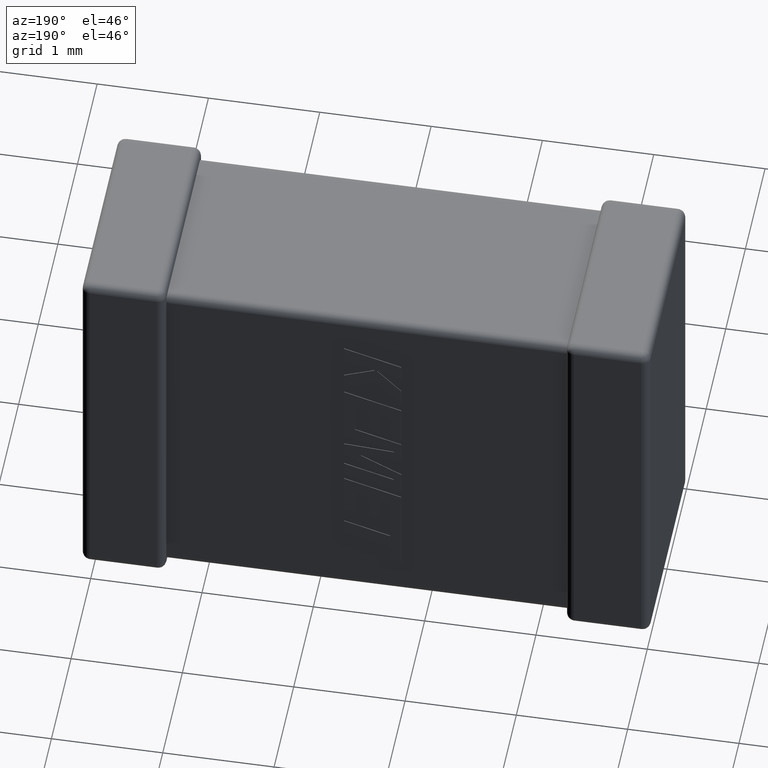
[diagram: clean part render]
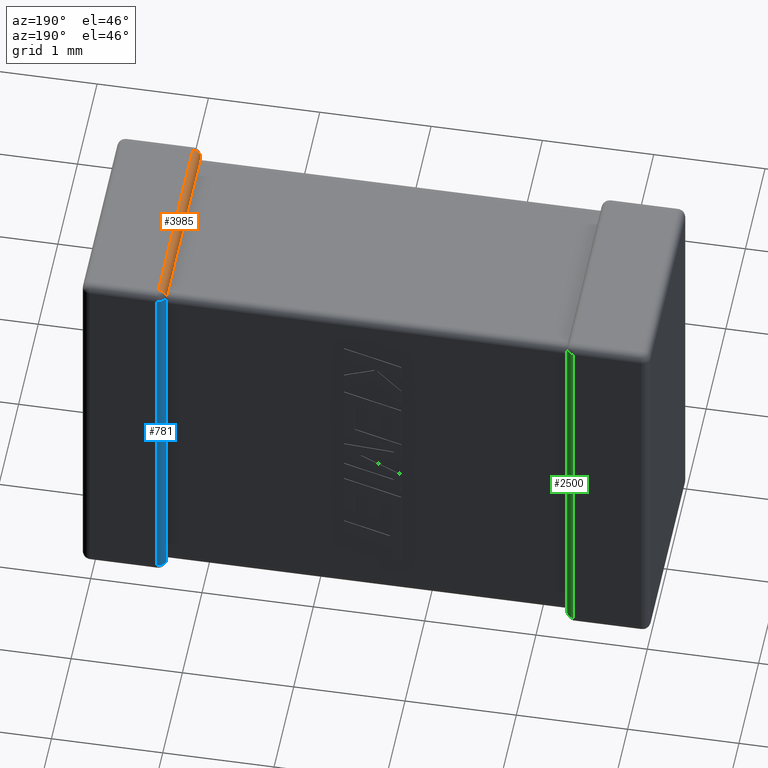
[diagram: same view with three faces highlighted in distinct colors, each labeled with its STEP entity id]
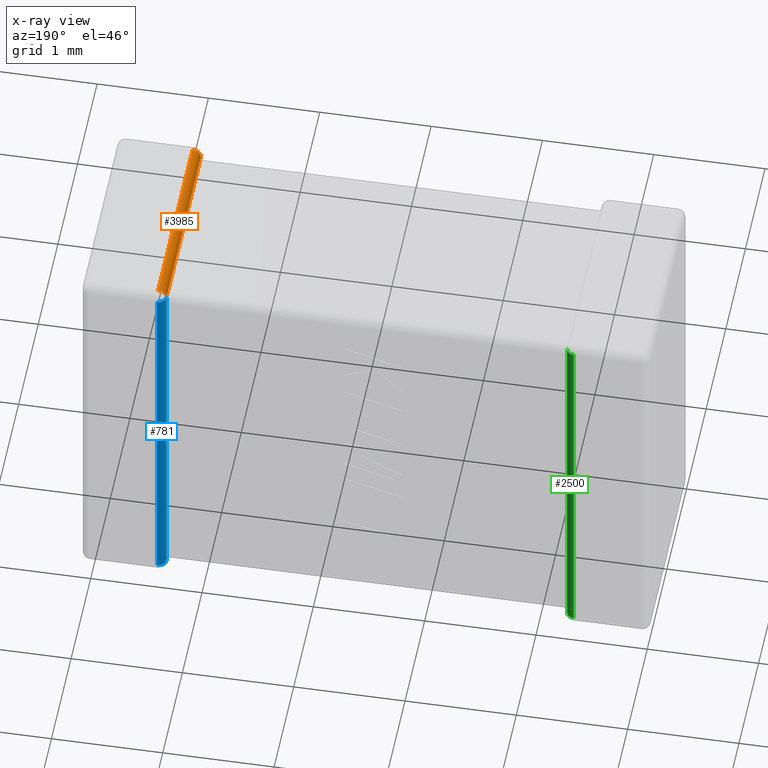
[diagram: x-ray of the same camera — body ghosted, the three highlighted faces saturated]
A machine part, auxiliary view with three faces highlighted in distinct colors.
The next image is the same camera in x-ray (body ghosted, the three faces saturated) — at least one of them is partly hidden behind the body in this view.
Their STEP definitions:

[orange] entity #3985 — the highlighted cylindrical surface (edge-blend (fillet) strip) has radius 0.0728 mm, axis along (0, 1, 0).
#27 = DIRECTION ( 'NONE',  ( 1.191430958775282736E-14, 1.000000000000000000, 0.000000000000000000 ) ) ;
#199 = CARTESIAN_POINT ( 'NONE',  ( 4.350000000000001421, 1.827199999999999935, -0.07280000000000003135 ) ) ;
#219 = CARTESIAN_POINT ( 'NONE',  ( 4.350000000000001421, 0.1455999999999993966, -0.07280000000000003135 ) ) ;
#253 = CARTESIAN_POINT ( 'NONE',  ( 4.350000000000001421, 1.899999999999999911, -0.07280000000000003135 ) ) ;
#310 = AXIS2_PLACEMENT_3D ( 'NONE', #1409, #4375, #2215 ) ;
#371 = CIRCLE ( 'NONE', #1364, 0.07279999999999960114 ) ;
#638 = EDGE_CURVE ( 'NONE', #3297, #3425, #1279, .T. ) ;
#839 = VECTOR ( 'NONE', #3559, 1000.000000000000000 ) ;
#944 = EDGE_CURVE ( 'NONE', #3900, #4324, #2394, .T. ) ;
#1067 = VECTOR ( 'NONE', #2371, 1000.000000000000000 ) ;
#1082 = ORIENTED_EDGE ( 'NONE', *, *, #2369, .F. ) ;
#1156 = CARTESIAN_POINT ( 'NONE',  ( 4.350000000000001421, 0.000000000000000000, -0.07280000000000003135 ) ) ;
#1236 = DIRECTION ( 'NONE',  ( 1.191430958775282736E-14, 1.000000000000000000, 0.000000000000000000 ) ) ;
#1279 = LINE ( 'NONE', #253, #2258 ) ;
#1364 = AXIS2_PLACEMENT_3D ( 'NONE', #2542, #2886, #2441 ) ;
#1409 = CARTESIAN_POINT ( 'NONE',  ( 4.422800000000000509, 1.827199999999999935, -0.07280000000000003135 ) ) ;
#1412 = ORIENTED_EDGE ( 'NONE', *, *, #3574, .T. ) ;
#1452 = FACE_OUTER_BOUND ( 'NONE', #2031, .T. ) ;
#1683 = LINE ( 'NONE', #1731, #839 ) ;
#1731 = CARTESIAN_POINT ( 'NONE',  ( 4.350000000000001421, 1.899999999999999911, -0.07280000000000003135 ) ) ;
#1778 = CARTESIAN_POINT ( 'NONE',  ( 4.422800000000000509, 1.827199999999999935, 0.000000000000000000 ) ) ;
#1779 = CIRCLE ( 'NONE', #310, 0.07279999999999960114 ) ;
#1851 = DIRECTION ( 'NONE',  ( -1.000000000000000000, 1.191430958775286049E-14, 0.000000000000000000 ) ) ;
#2031 = EDGE_LOOP ( 'NONE', ( #2675, #1082, #2607, #1412, #3661, #2592 ) ) ;
#2215 = DIRECTION ( 'NONE',  ( -1.000000000000000000, 1.191430958775286049E-14, 0.000000000000000000 ) ) ;
#2258 = VECTOR ( 'NONE', #1236, 1000.000000000000000 ) ;
#2369 = EDGE_CURVE ( 'NONE', #4324, #3451, #371, .T. ) ;
#2371 = DIRECTION ( 'NONE',  ( -1.191430958775282736E-14, -1.000000000000000000, -0.000000000000000000 ) ) ;
#2394 = LINE ( 'NONE', #3159, #1067 ) ;
#2441 = DIRECTION ( 'NONE',  ( 1.000000000000000000, -1.191430958775286049E-14, 0.000000000000000000 ) ) ;
#2542 = CARTESIAN_POINT ( 'NONE',  ( 4.422799999999979192, 0.07280000000000000360, -0.07280000000000000360 ) ) ;
#2577 = CARTESIAN_POINT ( 'NONE',  ( 4.422800000000001397, 1.899999999999999023, -0.07280000000000003135 ) ) ;
#2592 = ORIENTED_EDGE ( 'NONE', *, *, #4238, .F. ) ;
#2607 = ORIENTED_EDGE ( 'NONE', *, *, #944, .F. ) ;
#2642 = DIRECTION ( 'NONE',  ( -0.000000000000000000, 1.000000000000000000, -0.000000000000000000 ) ) ;
#2675 = ORIENTED_EDGE ( 'NONE', *, *, #3731, .F. ) ;
#2817 = CARTESIAN_POINT ( 'NONE',  ( 4.350000000000000533, 0.07279999999999937910, -0.07280000000000003135 ) ) ;
#2886 = DIRECTION ( 'NONE',  ( -1.191430958775286049E-14, -1.000000000000000000, 0.000000000000000000 ) ) ;
#3011 = LINE ( 'NONE', #1156, #4258 ) ;
#3159 = CARTESIAN_POINT ( 'NONE',  ( 4.422799999999978304, 8.068370452826476507E-15, 0.000000000000000000 ) ) ;
#3183 = AXIS2_PLACEMENT_3D ( 'NONE', #2577, #27, #1851 ) ;
#3297 = VERTEX_POINT ( 'NONE', #4127 ) ;
#3340 = CYLINDRICAL_SURFACE ( 'NONE', #3183, 0.07279999999999960114 ) ;
#3425 = VERTEX_POINT ( 'NONE', #199 ) ;
#3451 = VERTEX_POINT ( 'NONE', #2817 ) ;
#3559 = DIRECTION ( 'NONE',  ( 1.191430958775282736E-14, 1.000000000000000000, 0.000000000000000000 ) ) ;
#3574 = EDGE_CURVE ( 'NONE', #3900, #3425, #1779, .T. ) ;
#3661 = ORIENTED_EDGE ( 'NONE', *, *, #638, .F. ) ;
#3731 = EDGE_CURVE ( 'NONE', #3451, #4137, #1683, .T. ) ;
#3900 = VERTEX_POINT ( 'NONE', #1778 ) ;
#3985 = ADVANCED_FACE ( 'NONE', ( #1452 ), #3340, .T. ) ;
#4127 = CARTESIAN_POINT ( 'NONE',  ( 4.350000000000001421, 1.754400000000000182, -0.07280000000000003135 ) ) ;
#4137 = VERTEX_POINT ( 'NONE', #219 ) ;
#4238 = EDGE_CURVE ( 'NONE', #4137, #3297, #3011, .T. ) ;
#4258 = VECTOR ( 'NONE', #2642, 1000.000000000000000 ) ;
#4324 = VERTEX_POINT ( 'NONE', #4580 ) ;
#4375 = DIRECTION ( 'NONE',  ( -1.191430958775286207E-14, -1.000000000000000000, 0.000000000000000000 ) ) ;
#4580 = CARTESIAN_POINT ( 'NONE',  ( 4.422799999999979192, 0.07280000000000000360, 0.000000000000000000 ) ) ;

[blue] entity #781 — the highlighted cylindrical surface (edge-blend (fillet) strip) has radius 0.0728 mm, axis along (0, 0, 1).
#14 = VERTEX_POINT ( 'NONE', #3217 ) ;
#31 = CARTESIAN_POINT ( 'NONE',  ( 4.422800000000000509, 1.827199999999999935, 0.000000000000000000 ) ) ;
#49 = LINE ( 'NONE', #1512, #997 ) ;
#74 = AXIS2_PLACEMENT_3D ( 'NONE', #4782, #2991, #2953 ) ;
#79 = DIRECTION ( 'NONE',  ( 0.000000000000000000, 0.000000000000000000, 1.000000000000000000 ) ) ;
#190 = CARTESIAN_POINT ( 'NONE',  ( 4.353192632527817629, 1.805877373670381036, -0.09412262632961970743 ) ) ;
#199 = CARTESIAN_POINT ( 'NONE',  ( 4.350000000000001421, 1.827199999999999935, -0.07280000000000003135 ) ) ;
#229 = DIRECTION ( 'NONE',  ( 0.000000000000000000, 0.000000000000000000, 1.000000000000000000 ) ) ;
#265 = CARTESIAN_POINT ( 'NONE',  ( 4.350000000000000533, 1.827200000000000157, -0.1456000000000000627 ) ) ;
#359 = EDGE_CURVE ( 'NONE', #2089, #1057, #2561, .T. ) ;
#423 = FACE_OUTER_BOUND ( 'NONE', #4234, .T. ) ;
#436 = VERTEX_POINT ( 'NONE', #265 ) ;
#519 = CARTESIAN_POINT ( 'NONE',  ( 4.422800000000000509, 1.827199999999999935, -0.07280000000000000360 ) ) ;
#526 = VECTOR ( 'NONE', #229, 1000.000000000000000 ) ;
#532 = CARTESIAN_POINT ( 'NONE',  ( 4.350000000000001421, 1.827199999999999935, -3.427200000000000024 ) ) ;
#584 = CARTESIAN_POINT ( 'NONE',  ( 4.350815866597121051, 1.815785839608291319, -3.394272475691364033 ) ) ;
#636 = CARTESIAN_POINT ( 'NONE',  ( 4.350055785151108800, 1.822706132417264424, -3.380704205023674636 ) ) ;
#654 = CARTESIAN_POINT ( 'NONE',  ( 4.350000000000000533, 1.827200000000000157, -3.354400000000000048 ) ) ;
#699 = CARTESIAN_POINT ( 'NONE',  ( 4.351704486567831154, 1.811538966515066074, -0.1004892639653245240 ) ) ;
#781 = ADVANCED_FACE ( 'NONE', ( #423 ), #4474, .T. ) ;
#840 = DIRECTION ( 'NONE',  ( -3.723221746172769397E-16, 0.000000000000000000, 1.000000000000000000 ) ) ;
#938 = CARTESIAN_POINT ( 'NONE',  ( 4.350000000000000533, 1.827200000000000157, -3.354400000000000048 ) ) ;
#997 = VECTOR ( 'NONE', #4514, 1000.000000000000000 ) ;
#1057 = VERTEX_POINT ( 'NONE', #1388 ) ;
#1278 = ORIENTED_EDGE ( 'NONE', *, *, #3463, .F. ) ;
#1300 = CIRCLE ( 'NONE', #74, 0.07279999999999960114 ) ;
#1361 = LINE ( 'NONE', #1651, #526 ) ;
#1388 = CARTESIAN_POINT ( 'NONE',  ( 4.353192632527817629, 1.805877373670380814, -3.405877373670380681 ) ) ;
#1405 = CARTESIAN_POINT ( 'NONE',  ( 4.350435176013913718, 1.819251902777221819, -3.387476739654533109 ) ) ;
#1489 = EDGE_CURVE ( 'NONE', #3425, #2327, #4054, .T. ) ;
#1508 = CARTESIAN_POINT ( 'NONE',  ( 4.350111683549546804, 1.823169038377902007, -0.1217115224307058624 ) ) ;
#1512 = CARTESIAN_POINT ( 'NONE',  ( 4.350000000000000533, 1.827200000000000157, -3.500000000000000000 ) ) ;
#1529 = ORIENTED_EDGE ( 'NONE', *, *, #4338, .F. ) ;
#1651 = CARTESIAN_POINT ( 'NONE',  ( 4.422800000000000509, 1.899999999999999911, 0.000000000000000000 ) ) ;
#1724 = CARTESIAN_POINT ( 'NONE',  ( 4.350000000000000533, 1.827200000000000157, -3.358199106259449174 ) ) ;
#1734 = CARTESIAN_POINT ( 'NONE',  ( 4.353192632527817629, 1.805877373670381036, -0.09412262632961970743 ) ) ;
#1746 = CARTESIAN_POINT ( 'NONE',  ( 4.350005466920571884, 1.826307837599944861, -3.365762345343280781 ) ) ;
#1813 = CARTESIAN_POINT ( 'NONE',  ( 4.350000000000000533, 1.827200000000000157, -0.1456000000000000627 ) ) ;
#2044 = CARTESIAN_POINT ( 'NONE',  ( 4.353192632527817629, 1.805877373670380814, -3.405877373670380681 ) ) ;
#2073 = CARTESIAN_POINT ( 'NONE',  ( 4.351072090335043718, 1.812799849230894100, -3.412799849230892857 ) ) ;
#2089 = VERTEX_POINT ( 'NONE', #532 ) ;
#2147 = CARTESIAN_POINT ( 'NONE',  ( 4.350000000000000533, 1.819960016085845123, -3.419960016085844323 ) ) ;
#2168 = CARTESIAN_POINT ( 'NONE',  ( 4.349998199799374632, 1.826900786478270478, -3.362009803912833217 ) ) ;
#2187 = CARTESIAN_POINT ( 'NONE',  ( 4.350258766749322881, 1.820516760541456946, -0.1140762683298840452 ) ) ;
#2224 = CARTESIAN_POINT ( 'NONE',  ( 4.353192632527817629, 1.805877373670381036, -0.09412262632961970743 ) ) ;
#2277 = ORIENTED_EDGE ( 'NONE', *, *, #2805, .T. ) ;
#2286 = B_SPLINE_CURVE_WITH_KNOTS ( 'NONE', 3,
 ( #3988, #4390, #584, #1405, #636, #4015, #1746, #2168, #1724, #654 ),
 .UNSPECIFIED., .F., .F.,
 ( 4, 3, 3, 4 ),
 ( 0.000000000000000000, 2.291429526389504405E-05, 4.570773099061641411E-05, 5.697602054444569989E-05 ),
 .UNSPECIFIED. ) ;
#2327 = VERTEX_POINT ( 'NONE', #1734 ) ;
#2346 = DIRECTION ( 'NONE',  ( 1.000000000000000000, 0.000000000000000000, 3.723221746172768904E-16 ) ) ;
#2561 =( BOUNDED_CURVE ( )  B_SPLINE_CURVE ( 3, ( #4317, #2147, #2073, #2044 ),
 .UNSPECIFIED., .F., .T. ) 
 B_SPLINE_CURVE_WITH_KNOTS ( ( 4, 4 ),
 ( 1.570796326794902553, 1.868047688116109883 ),
 .UNSPECIFIED. ) 
 CURVE ( )  GEOMETRIC_REPRESENTATION_ITEM ( )  RATIONAL_B_SPLINE_CURVE ( ( 1.000000000000000000, 0.9926503465430338569, 0.9926503465430338569, 1.000000000000000000 ) ) 
 REPRESENTATION_ITEM ( '' )  );
#2588 = VERTEX_POINT ( 'NONE', #938 ) ;
#2751 = ORIENTED_EDGE ( 'NONE', *, *, #2969, .T. ) ;
#2805 = EDGE_CURVE ( 'NONE', #2588, #436, #49, .T. ) ;
#2904 = ORIENTED_EDGE ( 'NONE', *, *, #3869, .T. ) ;
#2945 = CIRCLE ( 'NONE', #3333, 0.07279999999999960114 ) ;
#2953 = DIRECTION ( 'NONE',  ( -1.000000000000000000, 0.000000000000000000, 0.000000000000000000 ) ) ;
#2969 = EDGE_CURVE ( 'NONE', #436, #2327, #3040, .T. ) ;
#2991 = DIRECTION ( 'NONE',  ( 0.000000000000000000, 0.000000000000000000, -1.000000000000000000 ) ) ;
#3040 = B_SPLINE_CURVE_WITH_KNOTS ( 'NONE', 3,
 ( #1813, #3300, #4035, #1508, #2187, #4060, #699, #3749, #3660, #2224 ),
 .UNSPECIFIED., .F., .F.,
 ( 4, 3, 3, 4 ),
 ( 0.000000000000000000, 2.422644186407601366E-05, 4.850291313082677469E-05, 5.704030738690994836E-05 ),
 .UNSPECIFIED. ) ;
#3050 = DIRECTION ( 'NONE',  ( 1.000000000000000000, 0.000000000000000000, 0.000000000000000000 ) ) ;
#3217 = CARTESIAN_POINT ( 'NONE',  ( 4.422800000000000509, 1.899999999999999911, -0.07280000000000000360 ) ) ;
#3300 = CARTESIAN_POINT ( 'NONE',  ( 4.350000000000000533, 1.827200000000000157, -0.1375245193786462927 ) ) ;
#3333 = AXIS2_PLACEMENT_3D ( 'NONE', #519, #840, #2346 ) ;
#3425 = VERTEX_POINT ( 'NONE', #199 ) ;
#3463 = EDGE_CURVE ( 'NONE', #3944, #14, #1361, .T. ) ;
#3629 = ORIENTED_EDGE ( 'NONE', *, *, #4001, .F. ) ;
#3651 = AXIS2_PLACEMENT_3D ( 'NONE', #31, #79, #3050 ) ;
#3660 = CARTESIAN_POINT ( 'NONE',  ( 4.352582322781696433, 1.807869719926278318, -0.09611497258517757991 ) ) ;
#3749 = CARTESIAN_POINT ( 'NONE',  ( 4.352094387556573629, 1.809768954912125860, -0.09824730024223374270 ) ) ;
#3756 = ORIENTED_EDGE ( 'NONE', *, *, #1489, .F. ) ;
#3869 = EDGE_CURVE ( 'NONE', #1057, #2588, #2286, .T. ) ;
#3944 = VERTEX_POINT ( 'NONE', #4436 ) ;
#3988 = CARTESIAN_POINT ( 'NONE',  ( 4.353192632527817629, 1.805877373670380814, -3.405877373670380681 ) ) ;
#4001 = EDGE_CURVE ( 'NONE', #2089, #3944, #1300, .T. ) ;
#4015 = CARTESIAN_POINT ( 'NONE',  ( 4.350020027576706028, 1.825119784657447397, -3.373281067532071908 ) ) ;
#4035 = CARTESIAN_POINT ( 'NONE',  ( 4.349964757895329548, 1.825818475274031849, -0.1293385981646564820 ) ) ;
#4054 =( BOUNDED_CURVE ( )  B_SPLINE_CURVE ( 3, ( #4209, #4253, #4628, #190 ),
 .UNSPECIFIED., .F., .T. ) 
 B_SPLINE_CURVE_WITH_KNOTS ( ( 4, 4 ),
 ( 1.570796326794902553, 1.868047688116109439 ),
 .UNSPECIFIED. ) 
 CURVE ( )  GEOMETRIC_REPRESENTATION_ITEM ( )  RATIONAL_B_SPLINE_CURVE ( ( 1.000000000000000000, 0.9926503465430338569, 0.9926503465430338569, 1.000000000000000000 ) ) 
 REPRESENTATION_ITEM ( '' )  );
#4060 = CARTESIAN_POINT ( 'NONE',  ( 4.350611154794317592, 1.816502303313009881, -0.1067760143052595145 ) ) ;
#4209 = CARTESIAN_POINT ( 'NONE',  ( 4.350000000000001421, 1.827199999999999935, -0.07280000000000003135 ) ) ;
#4234 = EDGE_LOOP ( 'NONE', ( #1529, #1278, #3629, #4777, #2904, #2277, #2751, #3756 ) ) ;
#4253 = CARTESIAN_POINT ( 'NONE',  ( 4.350000000000000533, 1.819960016085845123, -0.08003998391415610703 ) ) ;
#4317 = CARTESIAN_POINT ( 'NONE',  ( 4.350000000000001421, 1.827199999999999935, -3.427200000000000024 ) ) ;
#4338 = EDGE_CURVE ( 'NONE', #14, #3425, #2945, .T. ) ;
#4390 = CARTESIAN_POINT ( 'NONE',  ( 4.351575672170316267, 1.811155914505484521, -3.400598832835277197 ) ) ;
#4436 = CARTESIAN_POINT ( 'NONE',  ( 4.422800000000000509, 1.899999999999999911, -3.427200000000000024 ) ) ;
#4474 = CYLINDRICAL_SURFACE ( 'NONE', #3651, 0.07279999999999960114 ) ;
#4514 = DIRECTION ( 'NONE',  ( -0.000000000000000000, -0.000000000000000000, 1.000000000000000000 ) ) ;
#4628 = CARTESIAN_POINT ( 'NONE',  ( 4.351072090335043718, 1.812799849230894100, -0.08720015076910718477 ) ) ;
#4777 = ORIENTED_EDGE ( 'NONE', *, *, #359, .T. ) ;
#4782 = CARTESIAN_POINT ( 'NONE',  ( 4.422800000000000509, 1.827199999999999935, -3.427200000000000024 ) ) ;

[green] entity #2500 — the highlighted cylindrical surface (edge-blend (fillet) strip) has radius 0.0728 mm, axis along (0, 0, 1).
#78 = CARTESIAN_POINT ( 'NONE',  ( 0.7500000000000000000, 1.827199999999999935, -3.500000000000000000 ) ) ;
#167 = DIRECTION ( 'NONE',  ( 0.000000000000000000, 0.000000000000000000, 1.000000000000000000 ) ) ;
#349 = CIRCLE ( 'NONE', #3069, 0.07280000000000003135 ) ;
#382 = VECTOR ( 'NONE', #1794, 1000.000000000000000 ) ;
#419 = EDGE_CURVE ( 'NONE', #4311, #1171, #627, .T. ) ;
#627 = LINE ( 'NONE', #2132, #382 ) ;
#711 = EDGE_CURVE ( 'NONE', #1171, #4096, #349, .T. ) ;
#801 = CARTESIAN_POINT ( 'NONE',  ( 0.7499999999999996669, 1.827199999999999935, -0.07280000000000003135 ) ) ;
#884 = CARTESIAN_POINT ( 'NONE',  ( 0.6772000000000000242, 1.899999999999999911, -0.07280000000000000360 ) ) ;
#925 = DIRECTION ( 'NONE',  ( -1.000000000000000000, 0.000000000000000000, 0.000000000000000000 ) ) ;
#1093 = CARTESIAN_POINT ( 'NONE',  ( 0.6772000000000000242, 1.827199999999999935, -0.07280000000000003135 ) ) ;
#1130 = DIRECTION ( 'NONE',  ( -0.000000000000000000, -0.000000000000000000, 1.000000000000000000 ) ) ;
#1171 = VERTEX_POINT ( 'NONE', #801 ) ;
#1220 = VECTOR ( 'NONE', #3922, 1000.000000000000000 ) ;
#1272 = CARTESIAN_POINT ( 'NONE',  ( 0.7500000000000000000, 1.827199999999999935, -3.500000000000000000 ) ) ;
#1477 = LINE ( 'NONE', #78, #2773 ) ;
#1521 = ORIENTED_EDGE ( 'NONE', *, *, #1584, .F. ) ;
#1533 = AXIS2_PLACEMENT_3D ( 'NONE', #3455, #4125, #4146 ) ;
#1584 = EDGE_CURVE ( 'NONE', #2303, #2042, #4605, .T. ) ;
#1589 = ORIENTED_EDGE ( 'NONE', *, *, #4005, .F. ) ;
#1794 = DIRECTION ( 'NONE',  ( 0.000000000000000000, 0.000000000000000000, 1.000000000000000000 ) ) ;
#2001 = AXIS2_PLACEMENT_3D ( 'NONE', #4620, #2774, #925 ) ;
#2009 = EDGE_LOOP ( 'NONE', ( #1521, #4742, #2206, #2088, #2552, #1589 ) ) ;
#2042 = VERTEX_POINT ( 'NONE', #2380 ) ;
#2065 = CARTESIAN_POINT ( 'NONE',  ( 0.7500000000000000000, 1.827199999999999935, -3.427200000000000024 ) ) ;
#2075 = LINE ( 'NONE', #2823, #1220 ) ;
#2088 = ORIENTED_EDGE ( 'NONE', *, *, #711, .F. ) ;
#2132 = CARTESIAN_POINT ( 'NONE',  ( 0.7500000000000000000, 1.827199999999999935, -3.500000000000000000 ) ) ;
#2143 = DIRECTION ( 'NONE',  ( 1.108990413693891270E-30, -3.723221746172747703E-16, 1.000000000000000000 ) ) ;
#2206 = ORIENTED_EDGE ( 'NONE', *, *, #4768, .F. ) ;
#2303 = VERTEX_POINT ( 'NONE', #2065 ) ;
#2380 = CARTESIAN_POINT ( 'NONE',  ( 0.7500000000000000000, 1.827199999999999935, -3.354400000000000048 ) ) ;
#2468 = CIRCLE ( 'NONE', #2001, 0.07280000000000003135 ) ;
#2500 = ADVANCED_FACE ( 'NONE', ( #4503 ), #3394, .T. ) ;
#2552 = ORIENTED_EDGE ( 'NONE', *, *, #419, .F. ) ;
#2773 = VECTOR ( 'NONE', #1130, 1000.000000000000000 ) ;
#2774 = DIRECTION ( 'NONE',  ( 0.000000000000000000, 0.000000000000000000, -1.000000000000000000 ) ) ;
#2823 = CARTESIAN_POINT ( 'NONE',  ( 0.6772000000000002462, 1.899999999999999911, 0.000000000000000000 ) ) ;
#3036 = VERTEX_POINT ( 'NONE', #4528 ) ;
#3069 = AXIS2_PLACEMENT_3D ( 'NONE', #1093, #2143, #4413 ) ;
#3394 = CYLINDRICAL_SURFACE ( 'NONE', #1533, 0.07280000000000003135 ) ;
#3455 = CARTESIAN_POINT ( 'NONE',  ( 0.6772000000000000242, 1.827199999999999935, -3.500000000000000000 ) ) ;
#3459 = VECTOR ( 'NONE', #167, 1000.000000000000000 ) ;
#3922 = DIRECTION ( 'NONE',  ( -0.000000000000000000, -0.000000000000000000, -1.000000000000000000 ) ) ;
#4005 = EDGE_CURVE ( 'NONE', #2042, #4311, #1477, .T. ) ;
#4096 = VERTEX_POINT ( 'NONE', #884 ) ;
#4125 = DIRECTION ( 'NONE',  ( 0.000000000000000000, 0.000000000000000000, 1.000000000000000000 ) ) ;
#4146 = DIRECTION ( 'NONE',  ( 1.000000000000000000, 0.000000000000000000, 0.000000000000000000 ) ) ;
#4245 = CARTESIAN_POINT ( 'NONE',  ( 0.7500000000000000000, 1.827199999999999935, -0.1456000000000000627 ) ) ;
#4311 = VERTEX_POINT ( 'NONE', #4245 ) ;
#4413 = DIRECTION ( 'NONE',  ( 0.000000000000000000, -1.000000000000000000, -3.723221746172747210E-16 ) ) ;
#4503 = FACE_OUTER_BOUND ( 'NONE', #2009, .T. ) ;
#4513 = EDGE_CURVE ( 'NONE', #3036, #2303, #2468, .T. ) ;
#4528 = CARTESIAN_POINT ( 'NONE',  ( 0.6772000000000000242, 1.899999999999999911, -3.427200000000000024 ) ) ;
#4605 = LINE ( 'NONE', #1272, #3459 ) ;
#4620 = CARTESIAN_POINT ( 'NONE',  ( 0.6772000000000000242, 1.827199999999999935, -3.427200000000000024 ) ) ;
#4742 = ORIENTED_EDGE ( 'NONE', *, *, #4513, .F. ) ;
#4768 = EDGE_CURVE ( 'NONE', #4096, #3036, #2075, .T. ) ;